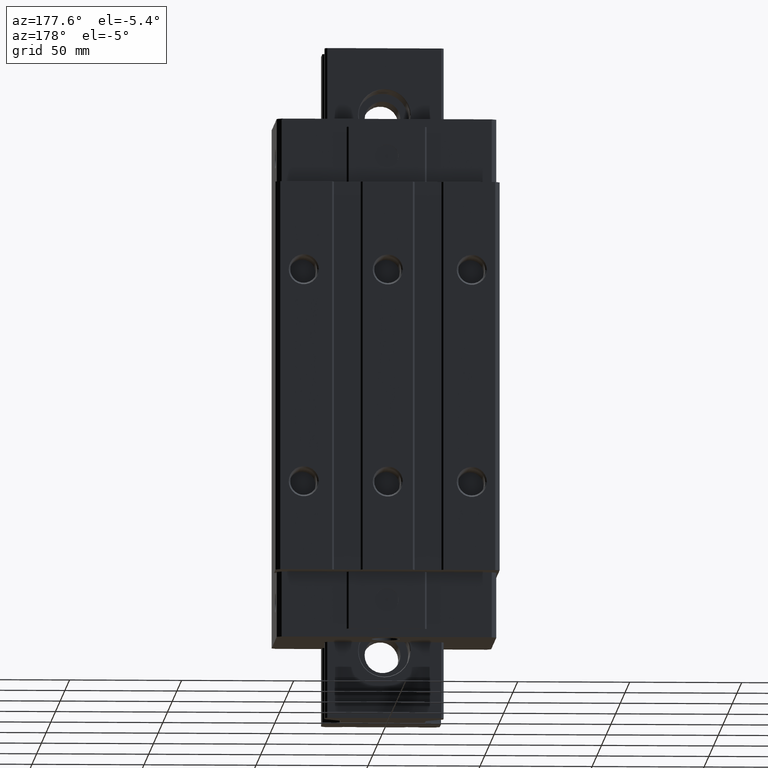
[diagram: clean part render]
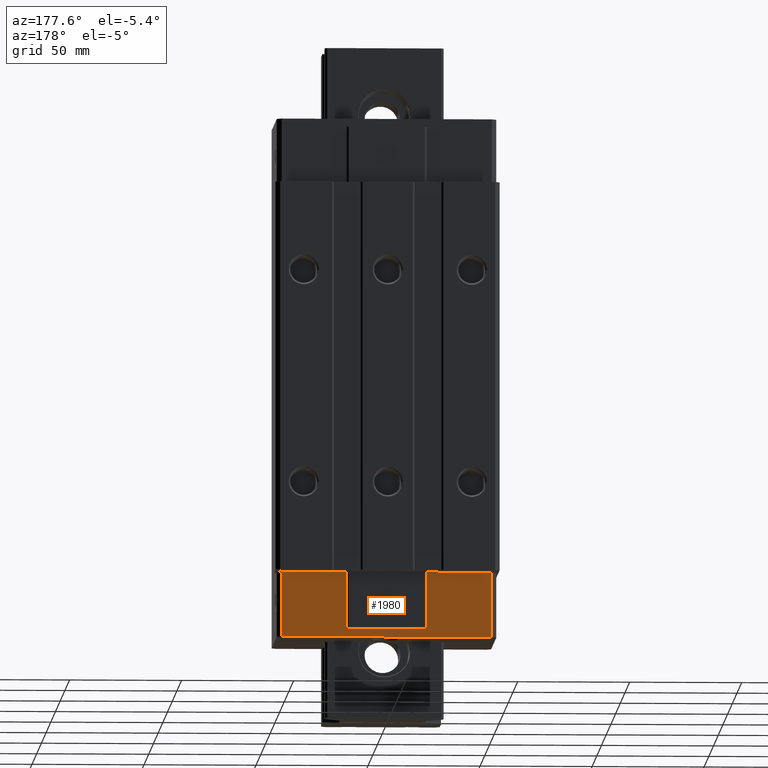
[diagram: same view with one face highlighted and labeled with its STEP entity id]
A machine part, auxiliary view. The second image highlights one B-rep face of the part: STEP entity #1980.
In plain terms, the highlighted planar face has unit normal (0, 1, 0).
Its self-contained STEP definition (entity closure, byte-faithful):
#153=DIRECTION('',(1.562705673149E-14,-2.160165898772E-14,1.E0));
#154=VECTOR('',#153,2.91E1);
#155=CARTESIAN_POINT('',(4.690001907349E1,-1.199945555908E0,-1.16E2));
#156=LINE('',#155,#154);
#157=DIRECTION('',(-1.E0,0.E0,0.E0));
#158=VECTOR('',#157,2.906559662029E1);
#159=CARTESIAN_POINT('',(4.690001907349E1,-1.199945555909E0,-8.69E1));
#160=LINE('',#159,#158);
#161=DIRECTION('',(0.E0,1.505549497707E-14,-1.E0));
#162=VECTOR('',#161,2.55E1);
#163=CARTESIAN_POINT('',(1.783442245320E1,-1.199945555909E0,-8.69E1));
#164=LINE('',#163,#162);
#165=DIRECTION('',(-1.E0,0.E0,0.E0));
#166=VECTOR('',#165,3.566884490640E1);
#167=CARTESIAN_POINT('',(1.783442245320E1,-1.199945555908E0,-1.124E2));
#168=LINE('',#167,#166);
#169=DIRECTION('',(-1.E0,0.E0,0.E0));
#170=VECTOR('',#169,2.906559662029E1);
#171=CARTESIAN_POINT('',(-1.783442245320E1,-1.199945555909E0,-8.69E1));
#172=LINE('',#171,#170);
#173=DIRECTION('',(0.E0,0.E0,-1.E0));
#174=VECTOR('',#173,2.91E1);
#175=CARTESIAN_POINT('',(-4.690001907349E1,-1.199945555909E0,-8.69E1));
#176=LINE('',#175,#174);
#261=DIRECTION('',(0.E0,1.307015498010E-14,-1.E0));
#262=VECTOR('',#261,2.55E1);
#263=CARTESIAN_POINT('',(-1.783442245320E1,-1.199945555909E0,-8.69E1));
#264=LINE('',#263,#262);
#495=DIRECTION('',(-1.E0,0.E0,0.E0));
#496=VECTOR('',#495,9.380003814698E1);
#497=CARTESIAN_POINT('',(4.690001907349E1,-1.199945555908E0,-1.16E2));
#498=LINE('',#497,#496);
#1369=CARTESIAN_POINT('',(4.690001907349E1,-1.199945555908E0,-1.16E2));
#1370=CARTESIAN_POINT('',(4.690001907349E1,-1.199945555909E0,-8.69E1));
#1371=VERTEX_POINT('',#1369);
#1372=VERTEX_POINT('',#1370);
#1373=CARTESIAN_POINT('',(1.783442245320E1,-1.199945555909E0,-8.69E1));
#1374=VERTEX_POINT('',#1373);
#1375=CARTESIAN_POINT('',(1.783442245320E1,-1.199945555908E0,-1.124E2));
#1376=VERTEX_POINT('',#1375);
#1377=CARTESIAN_POINT('',(-1.783442245320E1,-1.199945555908E0,-1.124E2));
#1378=VERTEX_POINT('',#1377);
#1379=CARTESIAN_POINT('',(-1.783442245320E1,-1.199945555909E0,-8.69E1));
#1380=VERTEX_POINT('',#1379);
#1381=CARTESIAN_POINT('',(-4.690001907349E1,-1.199945555909E0,-8.69E1));
#1382=VERTEX_POINT('',#1381);
#1383=CARTESIAN_POINT('',(-4.690001907349E1,-1.199945555909E0,-1.16E2));
#1384=VERTEX_POINT('',#1383);
#1958=CARTESIAN_POINT('',(-4.690001907349E1,-1.199945555909E0,-8.69E1));
#1959=DIRECTION('',(0.E0,1.E0,0.E0));
#1960=DIRECTION('',(1.E0,0.E0,0.E0));
#1961=AXIS2_PLACEMENT_3D('',#1958,#1959,#1960);
#1962=PLANE('',#1961);
#1963=ORIENTED_EDGE('',*,*,#1948,.T.);
#1965=ORIENTED_EDGE('',*,*,#1964,.T.);
#1967=ORIENTED_EDGE('',*,*,#1966,.T.);
#1969=ORIENTED_EDGE('',*,*,#1968,.T.);
#1971=ORIENTED_EDGE('',*,*,#1970,.F.);
#1973=ORIENTED_EDGE('',*,*,#1972,.T.);
#1975=ORIENTED_EDGE('',*,*,#1974,.T.);
#1977=ORIENTED_EDGE('',*,*,#1976,.F.);
#1978=EDGE_LOOP('',(#1963,#1965,#1967,#1969,#1971,#1973,#1975,#1977));
#1979=FACE_OUTER_BOUND('',#1978,.F.);
#1980=ADVANCED_FACE('',(#1979),#1962,.T.);
#1948=EDGE_CURVE('',#1371,#1372,#156,.T.);
#1964=EDGE_CURVE('',#1372,#1374,#160,.T.);
#1966=EDGE_CURVE('',#1374,#1376,#164,.T.);
#1968=EDGE_CURVE('',#1376,#1378,#168,.T.);
#1970=EDGE_CURVE('',#1380,#1378,#264,.T.);
#1972=EDGE_CURVE('',#1380,#1382,#172,.T.);
#1974=EDGE_CURVE('',#1382,#1384,#176,.T.);
#1976=EDGE_CURVE('',#1371,#1384,#498,.T.);